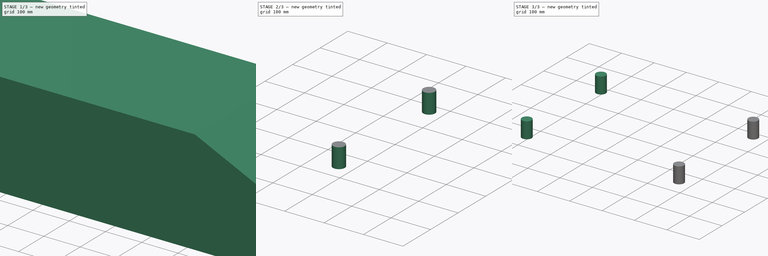
[diagram: build sequence overview — one tinted view per stage of 3, left to right]
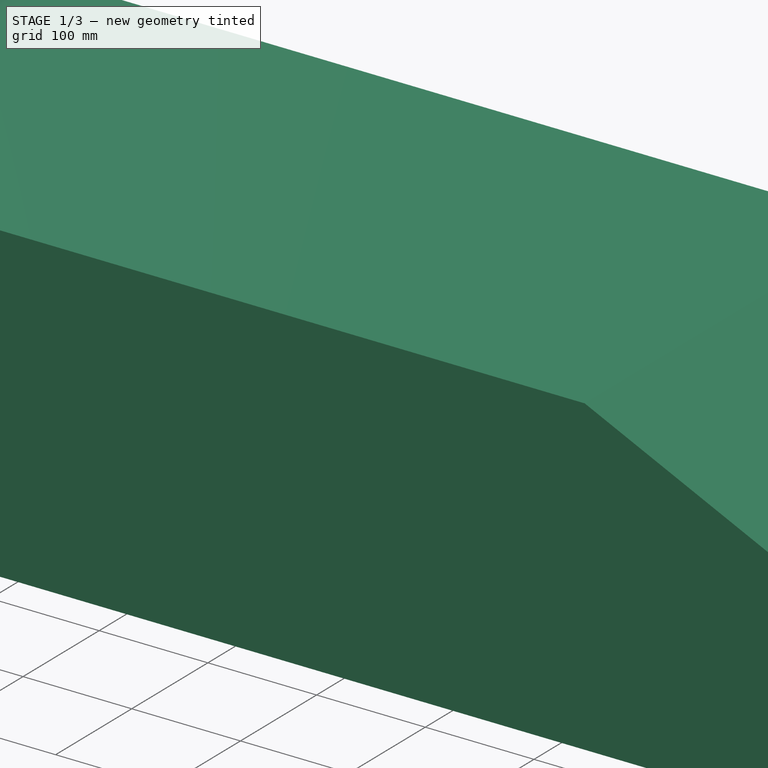
[diagram: stage 1 of 3 — iso view after this stage's code; geometry added in this stage tinted green]
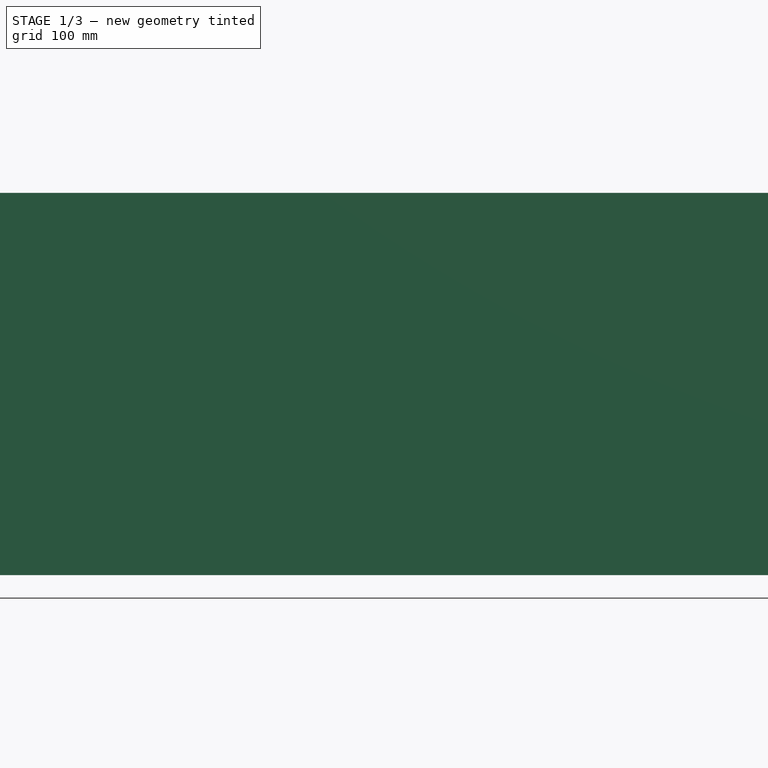
[diagram: stage 1 of 3 — front view after this stage's code; geometry added in this stage tinted green]
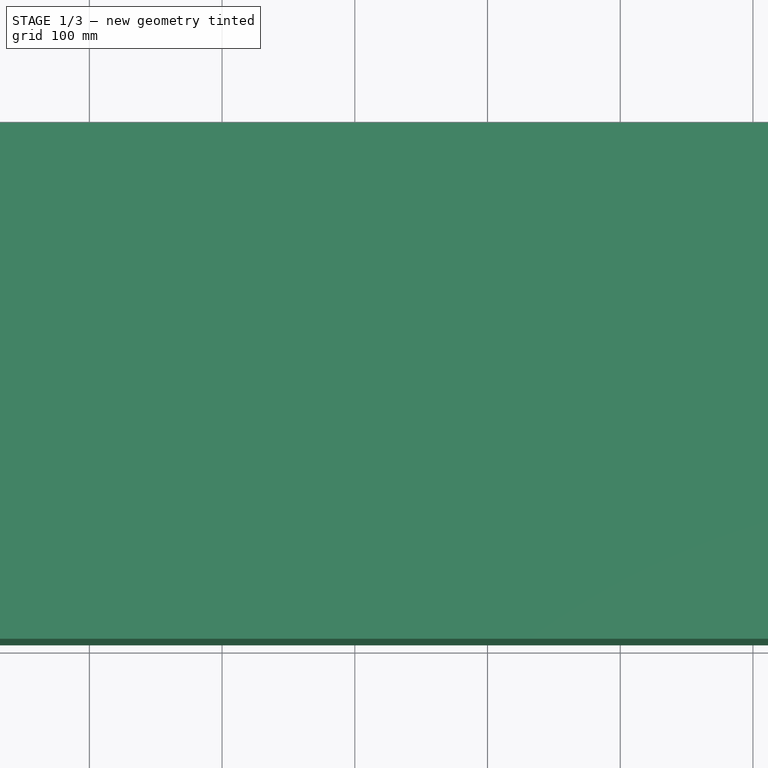
[diagram: stage 1 of 3 — top view after this stage's code; geometry added in this stage tinted green]
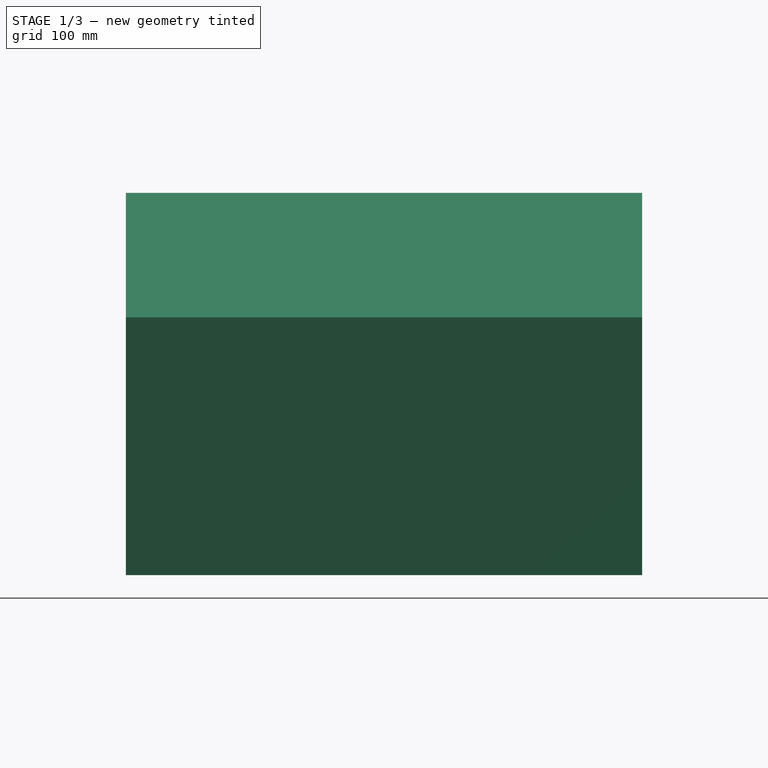
[diagram: stage 1 of 3 — right view after this stage's code; geometry added in this stage tinted green]
FCSTD DOCUMENT  (FreeCAD 0.18R16146 (Git))
Label: ahmed_body_25deg
License: All rights reserved
LicenseURL: http://en.wikipedia.org/wiki/All_rights_reserved
objects: Sketcher::SketchObject×6, PartDesign::Pad×5, PartDesign::Body×5, PartDesign::Pocket×1
note: 23 computed .brp shape members not serialized (recipe doc carries the construction recipe); baked Part::Feature solids carry a one-line shape summary decoded from their .brp

FEATURE [Sketcher::SketchObject] Sketch  label="profile"
  Placement = pos=(0,0,0) rot=(1,0,0;1.5708rad)
  sketch-geometry (7):
    g0: LineSegment StartX=-2.89e-14 StartY=338 StartZ=0 EndX=742.8 EndY=338 EndZ=0
    g1: ArcOfCircle CenterX=-3.51e-14 CenterY=238 CenterZ=0 NormalX=0 NormalY=0 NormalZ=1 AngleXU=0 Radius=100 StartAngle=1.5708 EndAngle=3.14159
    g2: ArcOfCircle CenterX=0 CenterY=150 CenterZ=0 NormalX=0 NormalY=0 NormalZ=1 AngleXU=0 Radius=100 StartAngle=3.14159 EndAngle=4.71239
    g3: LineSegment StartX=-100 StartY=238 StartZ=0 EndX=-100 EndY=150 EndZ=0
    g4: LineSegment StartX=0 StartY=50 StartZ=0 EndX=944 EndY=50 EndZ=0
    g5: LineSegment StartX=742.8 StartY=338 StartZ=0 EndX=944 EndY=244.179 EndZ=0
    g6: LineSegment StartX=944 StartY=50 StartZ=0 EndX=944 EndY=244.179 EndZ=0
  constraints (21):
    c: Horizontal(g0)
    c: Vertical(g3)
    c: Radius(g1) = 100
    c: Radius(g2) = 100
    c: Tangent(g1,g3) = -1.5708
    c: Tangent(g2,g3) = -1.5708
    c: Tangent(g0,g1) = 1.5708
    c: Tangent(g2,g4)
    c: Horizontal(g4)
    c: DistanceY(g4,g0) = 288
    c: DistanceX(g2,g4) = 1044
    c: Distance(g5) = 222
    c: Coincident(g0,g5)
    c: Vertical(g6)
    c: Coincident(g4,g6)
    c: Coincident(g5,g6)
    c: Angle(g5,g4) = 0.436332
    c: DistanceY(g-1,g4) = 50
    c: Vertical(g2,g4)
    c: Vertical(g4,g-1)
    c: Vertical(g2,g2)
FEATURE [PartDesign::Pad] Pad
  Length = 389
  Length2 = 100
  Midplane = true
  Placement = pos=(0,0,0) rot=(1,0,0;1.5708rad)
  Profile = -> Sketch
  Type = 0
FEATURE [Sketcher::SketchObject] Sketch001  label="vertical_cut"
  ExternalGeometry = -> [Pad]
  MapMode = 5
  Support = -> [XY_Plane]
  sketch-geometry (8):
    g0: ArcOfCircle CenterX=8.87244e-11 CenterY=94.5 CenterZ=0 NormalX=0 NormalY=0 NormalZ=1 AngleXU=0 Radius=100 StartAngle=1.5708 EndAngle=3.14159
    g1: ArcOfCircle CenterX=0 CenterY=-94.5 CenterZ=0 NormalX=0 NormalY=0 NormalZ=1 AngleXU=0 Radius=100 StartAngle=3.14159 EndAngle=4.71239
    g2: LineSegment StartX=-100 StartY=94.5 StartZ=0 EndX=-100 EndY=-94.5 EndZ=0
    g3: LineSegment StartX=1.5e-15 StartY=194.5 StartZ=0 EndX=1.5e-15 EndY=244.5 EndZ=0
    g4: LineSegment StartX=1.5e-15 StartY=244.5 StartZ=0 EndX=-150 EndY=244.5 EndZ=0
    g5: LineSegment StartX=-150 StartY=244.5 StartZ=0 EndX=-150 EndY=-244.5 EndZ=0
    g6: LineSegment StartX=-150 StartY=-244.5 StartZ=0 EndX=-2.84e-14 EndY=-244.5 EndZ=0
    g7: LineSegment StartX=-1.84e-14 StartY=-244.5 StartZ=0 EndX=-1.84e-14 EndY=-194.5 EndZ=0
  constraints (20):
    c: Tangent(g0,g-3) = 1.5708
    c: Tangent(g1,g-4) = -1.5708
    c: Radius(g0) = 100
    c: Radius(g1) = 100
    c: Tangent(g0,g2) = -1.5708
    c: Tangent(g1,g2) = -1.5708
    c: Coincident(g4,g5)
    c: Coincident(g5,g6)
    c: Coincident(g6,g7)
    c: Coincident(g0,g3)
    c: Coincident(g1,g7)
    c: Vertical(g3)
    c: Vertical(g5)
    c: Vertical(g7)
    c: Horizontal(g4)
    c: Horizontal(g6)
    c: Coincident(g3,g4)
    c: DistanceY(g3,g3) = 50
    c: DistanceY(g7,g7) = 50
    c: DistanceX(g4,g4) = 150
FEATURE [PartDesign::Pocket] Pocket
  BaseFeature = -> Pad
  Length = 5
  Length2 = 100
  Placement = pos=(0,0,0) rot=(1,0,0;1.5708rad)
  Profile = -> Sketch001
  Reversed = true
  Type = 1
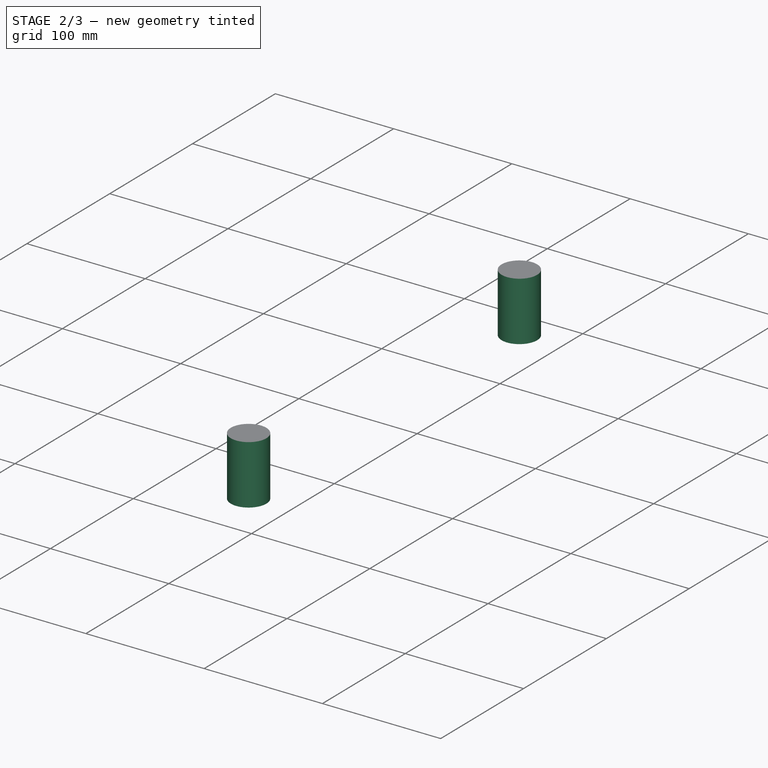
[diagram: stage 2 of 3 — iso view after this stage's code; geometry added in this stage tinted green]
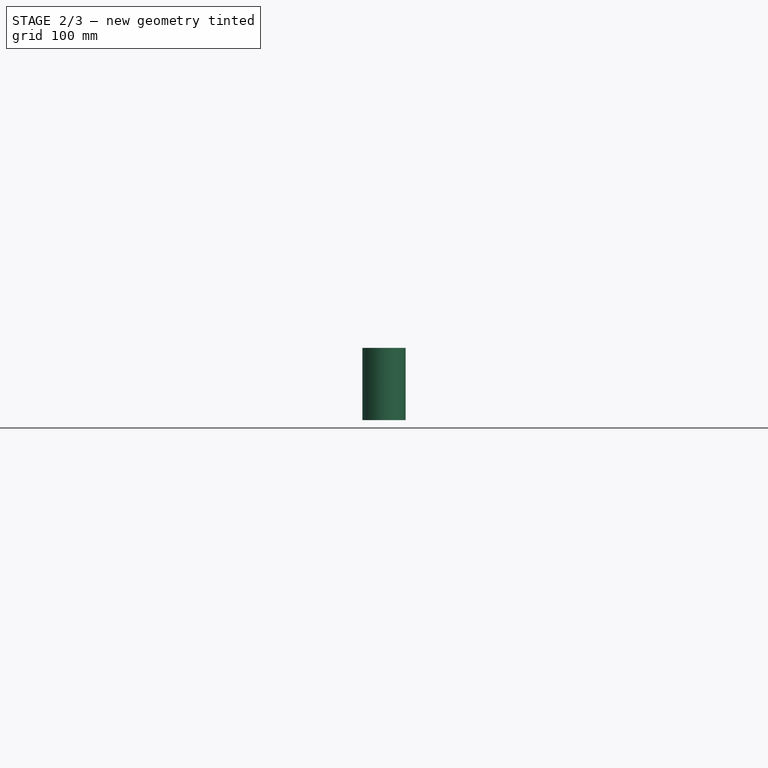
[diagram: stage 2 of 3 — front view after this stage's code; geometry added in this stage tinted green]
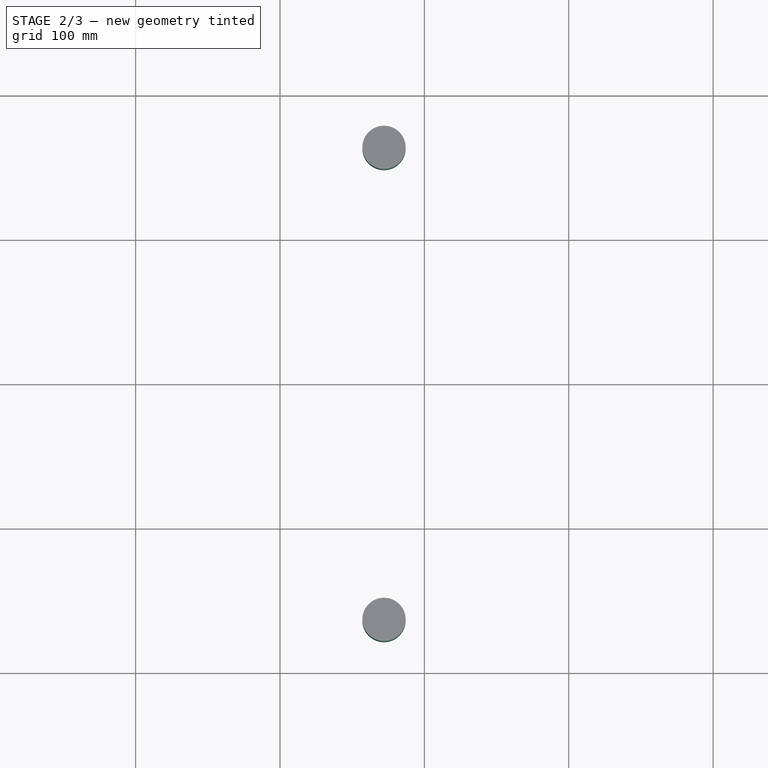
[diagram: stage 2 of 3 — top view after this stage's code; geometry added in this stage tinted green]
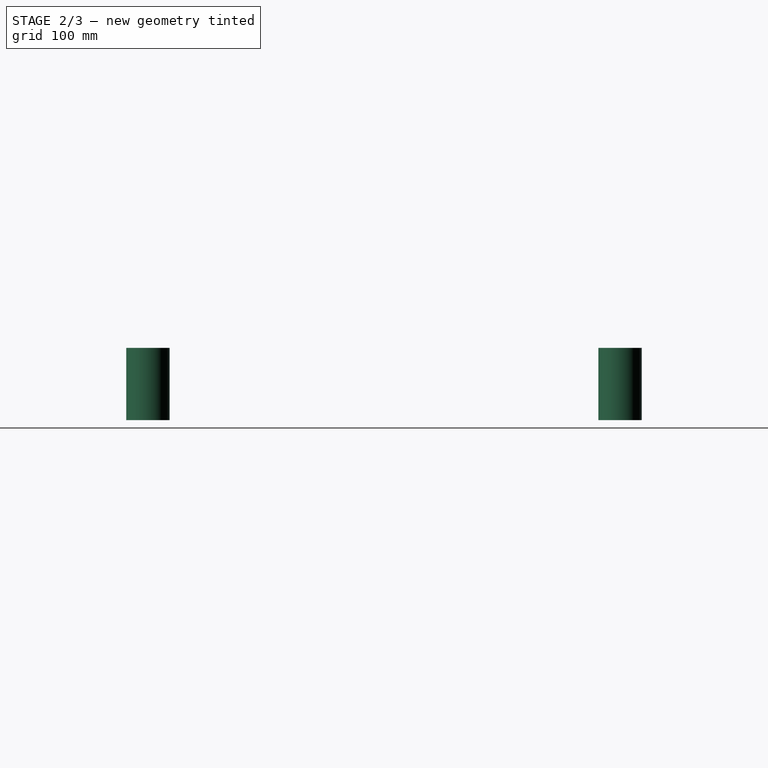
[diagram: stage 2 of 3 — right view after this stage's code; geometry added in this stage tinted green]
FEATURE [PartDesign::Body] Body002  label="support_fp001"
  Group = -> [CopySketch002,Pad002]
  Origin = -> Origin002
  Tip = -> Pad002
FEATURE [PartDesign::Pad] Pad003
  Length = 50
  Length2 = 100
  Profile = -> CopySketch004
  Type = 0
FEATURE [PartDesign::Body] Body003  label="support_rp001"
  Group = -> [CopySketch004,Pad003]
  Origin = -> Origin003
  Tip = -> Pad003
FEATURE [PartDesign::Pad] Pad004
  Length = 50
  Length2 = 100
  Profile = -> CopySketch005
  Type = 0
FEATURE [PartDesign::Body] Body004  label="support_rd001"
  Group = -> [CopySketch005,Pad004]
  Origin = -> Origin004
  Tip = -> Pad004
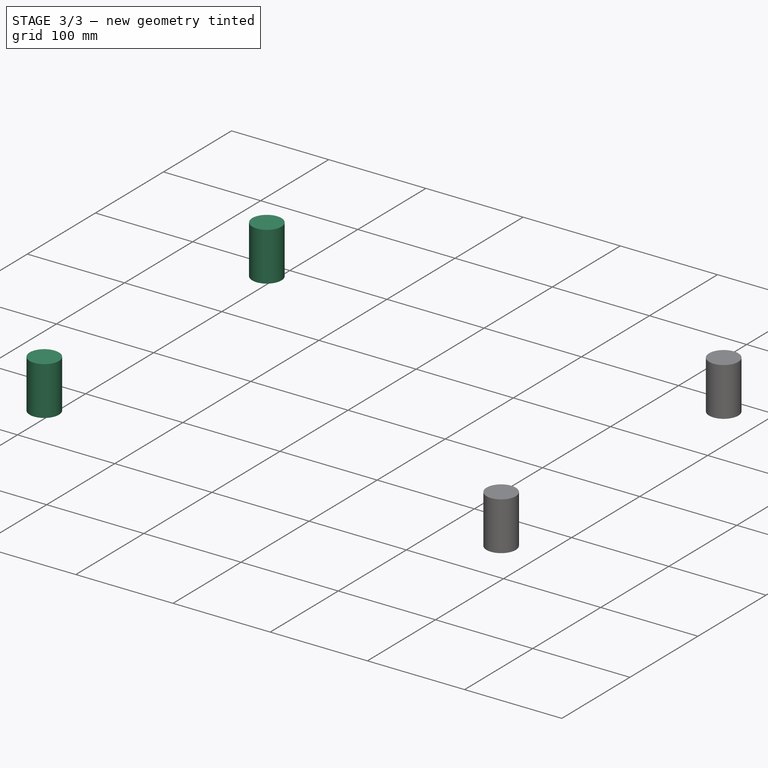
[diagram: stage 3 of 3 — iso view after this stage's code; geometry added in this stage tinted green]
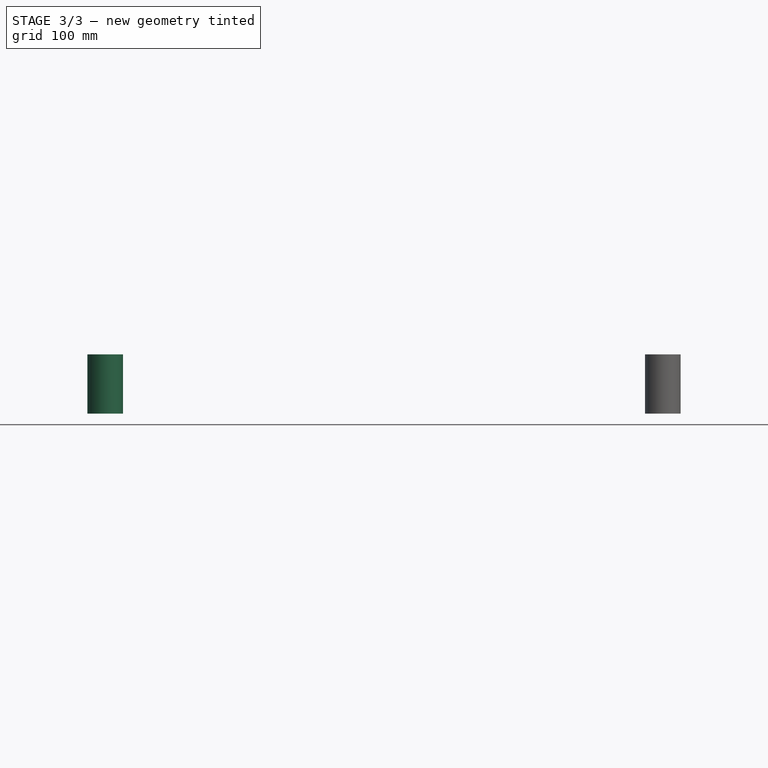
[diagram: stage 3 of 3 — front view after this stage's code; geometry added in this stage tinted green]
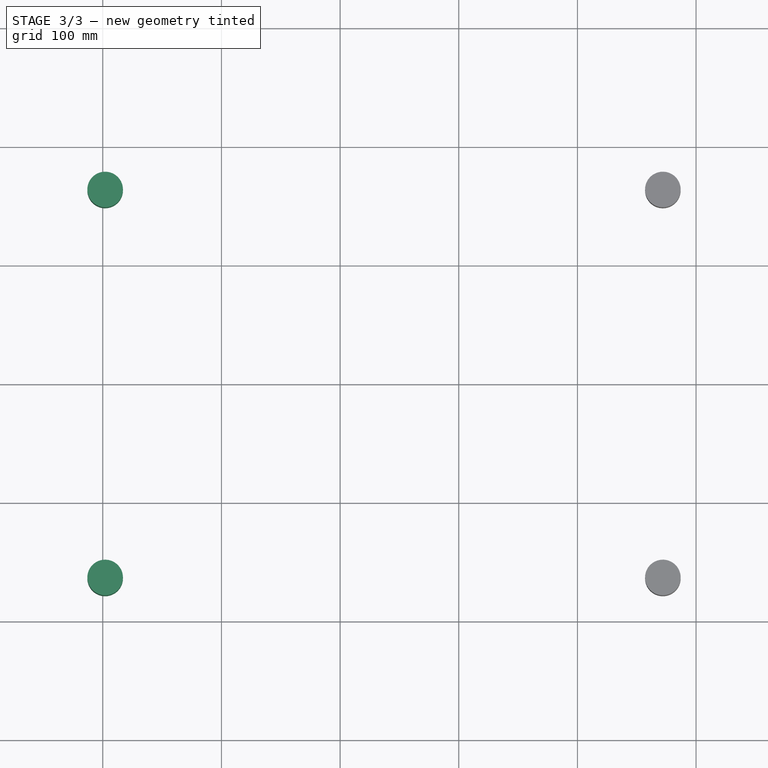
[diagram: stage 3 of 3 — top view after this stage's code; geometry added in this stage tinted green]
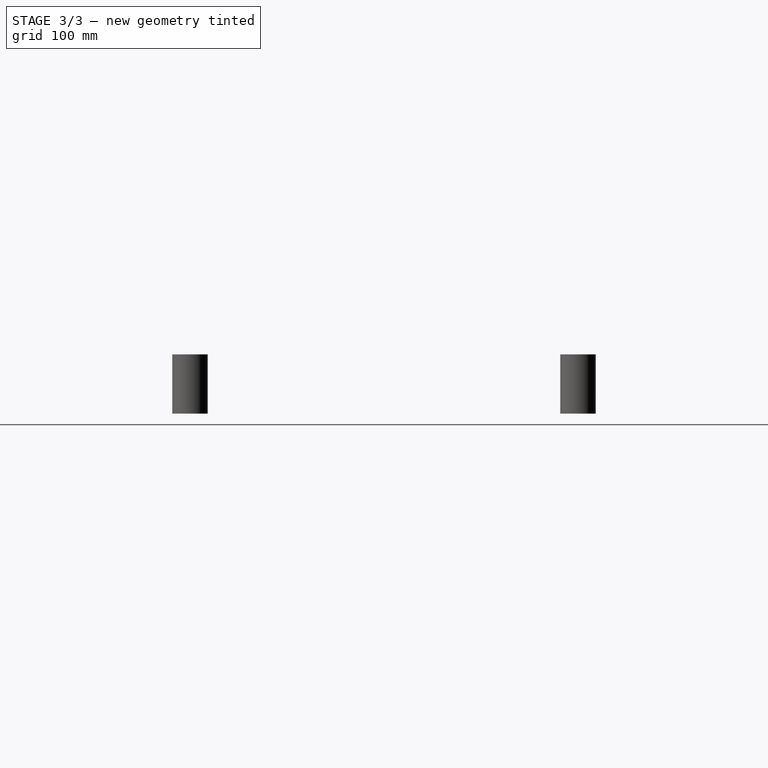
[diagram: stage 3 of 3 — right view after this stage's code; geometry added in this stage tinted green]
FEATURE [PartDesign::Body] Body  label="main_body"
  Group = -> [Sketch,Pad,Sketch001,Pocket]
  Origin = -> Origin
  Tip = -> Pocket
FEATURE [Sketcher::SketchObject] CopySketch002  label="support_fp"
  ExternalGeometry = -> [Pocket]
  sketch-geometry (1):
    g0: Circle CenterX=102 CenterY=163.5 CenterZ=0 NormalX=0 NormalY=0 NormalZ=1 AngleXU=0 Radius=15
  constraints (3):
    c: Diameter(g0) = 30
    c: DistanceX(g-3,g0) = 202
    c: DistanceY(g-1,g0) = 163.5
FEATURE [Sketcher::SketchObject] CopySketch003  label="support_fd"
  ExternalGeometry = -> [Pocket]
  sketch-geometry (1):
    g0: Circle CenterX=102 CenterY=-163.5 CenterZ=0 NormalX=0 NormalY=0 NormalZ=1 AngleXU=0 Radius=15
  constraints (3):
    c: Diameter(g0) = 30
    c: DistanceX(g-3,g0) = 202
    c: DistanceY(g0,g-1) = 163.5
FEATURE [Sketcher::SketchObject] CopySketch004  label="support_rp"
  ExternalGeometry = -> [Pocket]
  sketch-geometry (1):
    g0: Circle CenterX=572 CenterY=163.5 CenterZ=0 NormalX=0 NormalY=0 NormalZ=1 AngleXU=0 Radius=15
  constraints (3):
    c: Diameter(g0) = 30
    c: DistanceY(g-1,g0) = 163.5
    c: DistanceX(g-3,g0) = 672
FEATURE [Sketcher::SketchObject] CopySketch005  label="support_rd"
  ExternalGeometry = -> [Pocket]
  sketch-geometry (1):
    g0: Circle CenterX=572 CenterY=-163.5 CenterZ=0 NormalX=0 NormalY=0 NormalZ=1 AngleXU=0 Radius=15
  constraints (3):
    c: Diameter(g0) = 30
    c: DistanceY(g0,g-1) = 163.5
    c: DistanceX(g-3,g0) = 672
FEATURE [PartDesign::Pad] Pad001
  Length = 50
  Length2 = 100
  Profile = -> CopySketch003
  Type = 0
FEATURE [PartDesign::Body] Body001  label="support_fd001"
  Group = -> [CopySketch003,Pad001]
  Origin = -> Origin001
  Tip = -> Pad001
FEATURE [PartDesign::Pad] Pad002
  Length = 50
  Length2 = 100
  Profile = -> CopySketch002
  Type = 0
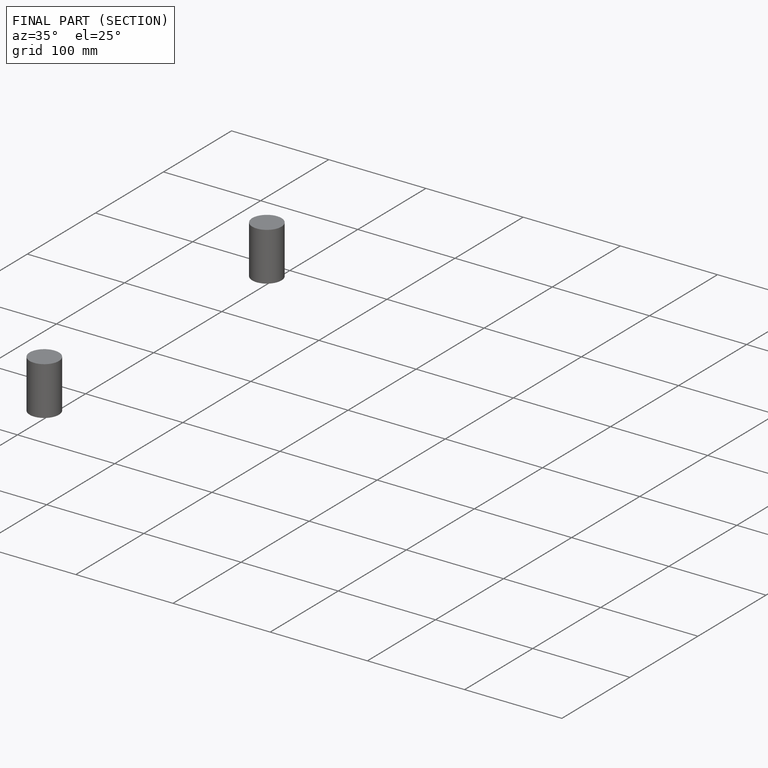
[diagram: finished part — half-section view (interior)]
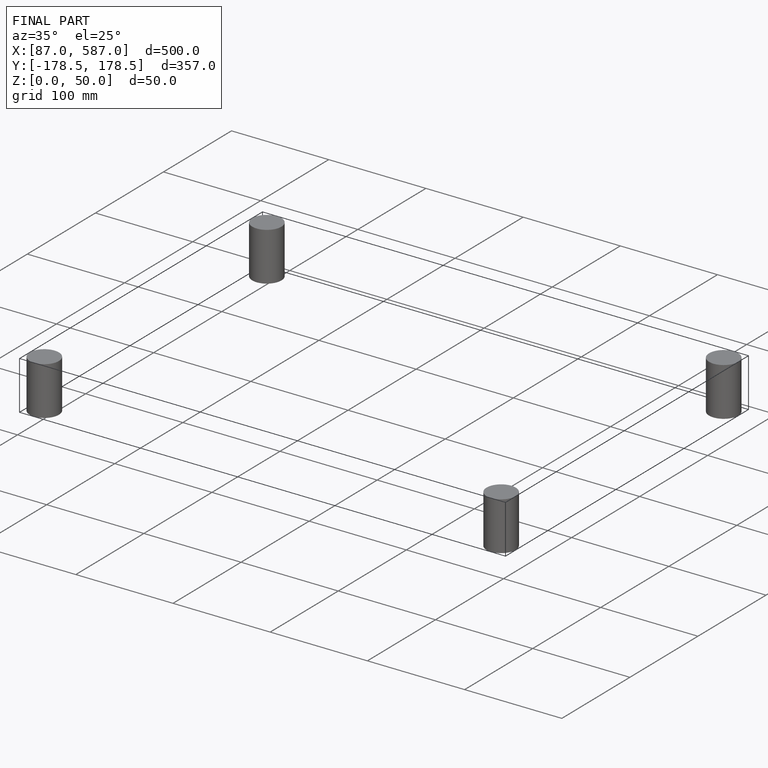
[diagram: finished part — iso view with bounding-box wireframe]
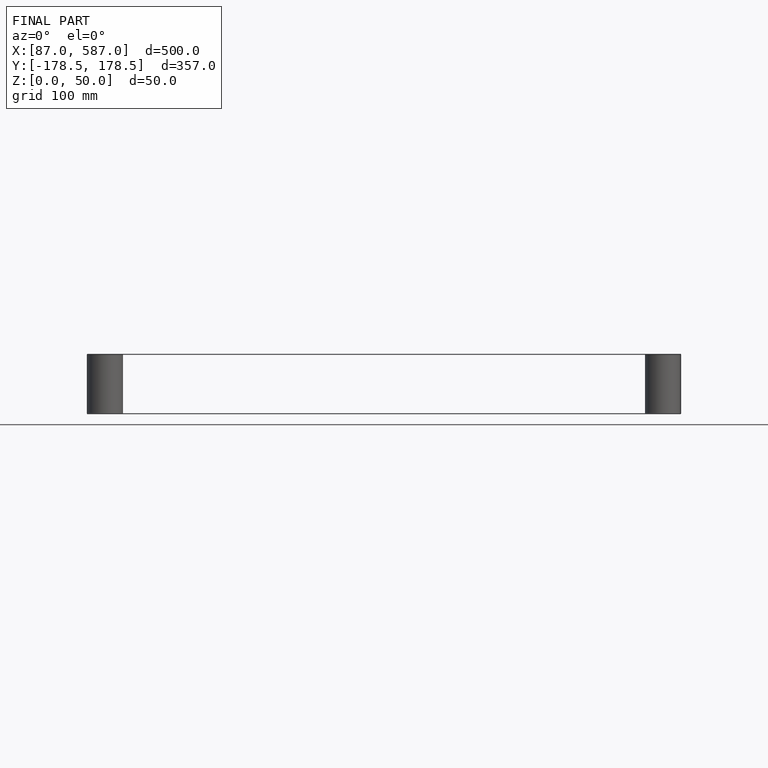
[diagram: finished part — front view with bounding-box wireframe]
